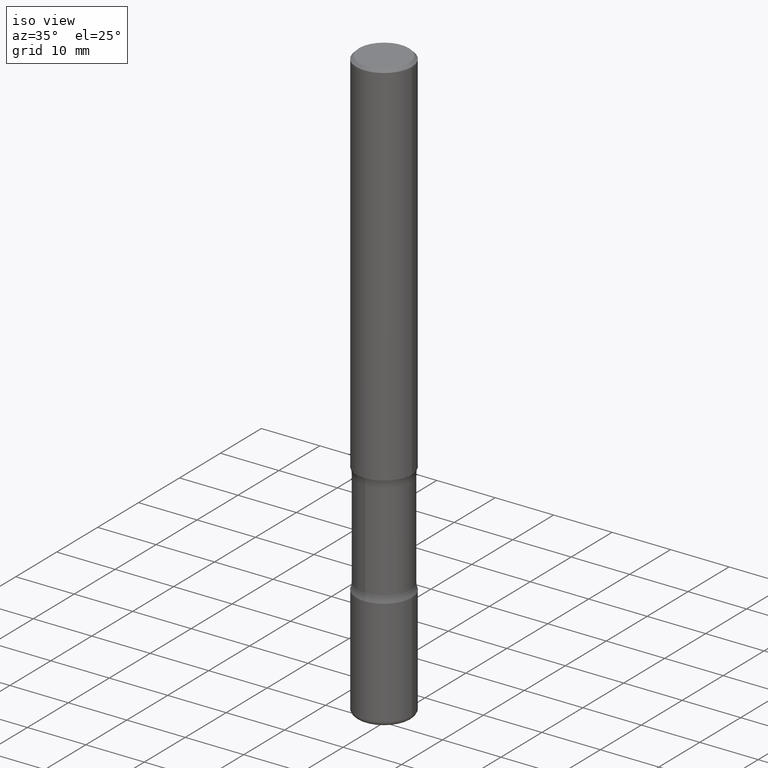
[diagram: clean part render]
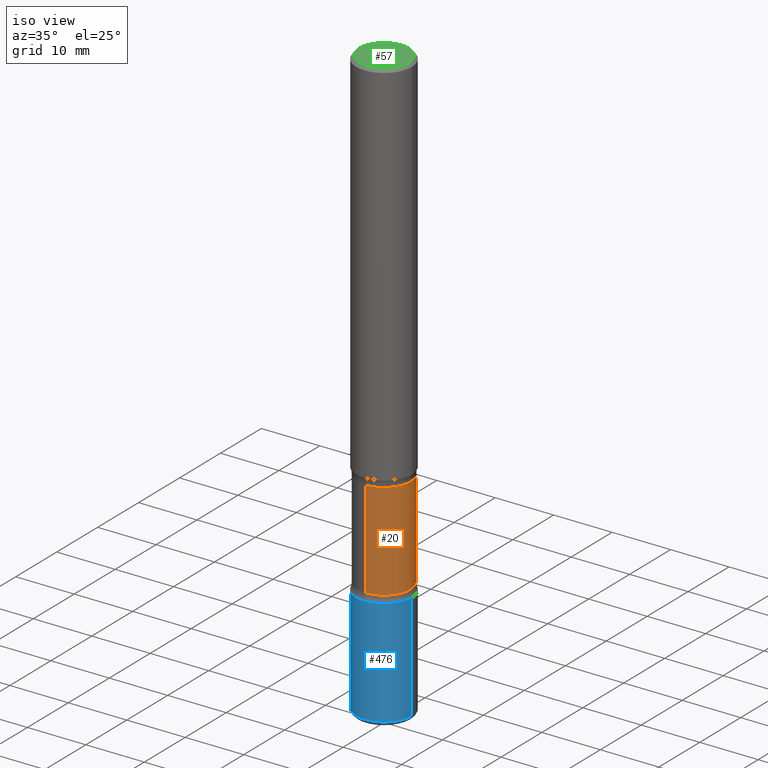
[diagram: same view with three faces highlighted in distinct colors, each labeled with its STEP entity id]
A machine part, iso view with three faces highlighted in distinct colors.
Their STEP definitions:

[orange] entity #20 — the highlighted cylindrical surface (edge-blend (fillet) strip) has radius 4.5244 mm, axis along (0, -0, -1).
#20 = ADVANCED_FACE ( 'NONE', ( #324 ), #87, .T. ) ;
#28 = VERTEX_POINT ( 'NONE', #279 ) ;
#71 = ORIENTED_EDGE ( 'NONE', *, *, #417, .F. ) ;
#73 = AXIS2_PLACEMENT_3D ( 'NONE', #463, #304, #352 ) ;
#87 = CYLINDRICAL_SURFACE ( 'NONE', #100, 0.1781249999999999500 ) ;
#91 = DIRECTION ( 'NONE',  ( 2.558681667686983511E-29, -3.329354077496592524E-15, -1.000000000000000000 ) ) ;
#96 = CARTESIAN_POINT ( 'NONE',  ( 1.243840226962964471E-15, 0.1781249999999861278, -4.000000000000000888 ) ) ;
#98 = CARTESIAN_POINT ( 'NONE',  ( 1.243840226962943961E-15, 0.1781249999999887368, -3.202504112020092553 ) ) ;
#100 = AXIS2_PLACEMENT_3D ( 'NONE', #431, #225, #390 ) ;
#103 = VERTEX_POINT ( 'NONE', #404 ) ;
#136 = DIRECTION ( 'NONE',  ( 2.558681667686983511E-29, -3.329354077496592524E-15, -1.000000000000000000 ) ) ;
#139 = CARTESIAN_POINT ( 'NONE',  ( 6.150289227201164007E-29, -9.008429421428009851E-15, -2.547495887979908780 ) ) ;
#140 = LINE ( 'NONE', #96, #376 ) ;
#194 = EDGE_CURVE ( 'NONE', #103, #262, #406, .T. ) ;
#225 = DIRECTION ( 'NONE',  ( 2.558681667686983511E-29, -3.329354077496592524E-15, -1.000000000000000000 ) ) ;
#237 = VECTOR ( 'NONE', #136, 39.37007874015748143 ) ;
#243 = ORIENTED_EDGE ( 'NONE', *, *, #194, .T. ) ;
#245 = EDGE_LOOP ( 'NONE', ( #243, #462, #71, #291 ) ) ;
#262 = VERTEX_POINT ( 'NONE', #403 ) ;
#279 = CARTESIAN_POINT ( 'NONE',  ( -1.254184790217529307E-15, -0.1781250000000111355, -3.202504112020091220 ) ) ;
#291 = ORIENTED_EDGE ( 'NONE', *, *, #347, .F. ) ;
#304 = DIRECTION ( 'NONE',  ( 2.558681667686983511E-29, -3.329354077496592524E-15, -1.000000000000000000 ) ) ;
#321 = DIRECTION ( 'NONE',  ( 6.982962677686266711E-15, 1.000000000000000000, -3.067338098149349089E-15 ) ) ;
#324 = FACE_OUTER_BOUND ( 'NONE', #245, .T. ) ;
#330 = EDGE_CURVE ( 'NONE', #262, #28, #359, .T. ) ;
#347 = EDGE_CURVE ( 'NONE', #103, #377, #140, .T. ) ;
#352 = DIRECTION ( 'NONE',  ( 6.982962677686265133E-15, 1.000000000000000000, -3.067338098149349483E-15 ) ) ;
#359 = LINE ( 'NONE', #522, #237 ) ;
#376 = VECTOR ( 'NONE', #91, 39.37007874015748143 ) ;
#377 = VERTEX_POINT ( 'NONE', #98 ) ;
#390 = DIRECTION ( 'NONE',  ( 6.982962677686266711E-15, 1.000000000000000000, -3.067338098149349089E-15 ) ) ;
#403 = CARTESIAN_POINT ( 'NONE',  ( -1.254184790217547253E-15, -0.1781250000000089706, -2.547495887979908336 ) ) ;
#404 = CARTESIAN_POINT ( 'NONE',  ( 1.243840226962927197E-15, 0.1781249999999909572, -2.547495887979909224 ) ) ;
#406 = CIRCLE ( 'NONE', #434, 0.1781249999999999500 ) ;
#417 = EDGE_CURVE ( 'NONE', #377, #28, #543, .T. ) ;
#431 = CARTESIAN_POINT ( 'NONE',  ( 9.866784870866931853E-29, -1.384432990936266734E-14, -4.000000000000000000 ) ) ;
#434 = AXIS2_PLACEMENT_3D ( 'NONE', #139, #537, #321 ) ;
#462 = ORIENTED_EDGE ( 'NONE', *, *, #330, .T. ) ;
#463 = CARTESIAN_POINT ( 'NONE',  ( 7.826246762236988201E-29, -1.118918372292999451E-14, -3.202504112020091664 ) ) ;
#522 = CARTESIAN_POINT ( 'NONE',  ( -1.222026205852954821E-15, -0.1781250000000138001, -3.999999999999999556 ) ) ;
#537 = DIRECTION ( 'NONE',  ( 2.558681667686983511E-29, -3.329354077496592524E-15, -1.000000000000000000 ) ) ;
#543 = CIRCLE ( 'NONE', #73, 0.1781249999999999223 ) ;

[blue] entity #476 — the highlighted cylindrical surface (edge-blend (fillet) strip) has radius 4.7625 mm, axis along (-0, 0, 1).
#14 = CARTESIAN_POINT ( 'NONE',  ( 0.1874999999999999722, -1.517048641727346712E-14, -3.970000000000000639 ) ) ;
#30 = AXIS2_PLACEMENT_3D ( 'NONE', #469, #312, #217 ) ;
#32 = DIRECTION ( 'NONE',  ( 1.000000000000000000, -6.982962677686269077E-15, 0.000000000000000000 ) ) ;
#36 = LINE ( 'NONE', #133, #301 ) ;
#45 = VERTEX_POINT ( 'NONE', #14 ) ;
#56 = DIRECTION ( 'NONE',  ( -2.445468806185136877E-29, 3.491481338843145188E-15, 1.000000000000000000 ) ) ;
#75 = CYLINDRICAL_SURFACE ( 'NONE', #30, 0.1875000000000001110 ) ;
#83 = CIRCLE ( 'NONE', #500, 0.1875000000000001110 ) ;
#88 = EDGE_CURVE ( 'NONE', #45, #200, #36, .T. ) ;
#108 = VERTEX_POINT ( 'NONE', #241 ) ;
#114 = VERTEX_POINT ( 'NONE', #365 ) ;
#133 = CARTESIAN_POINT ( 'NONE',  ( 0.1875000000000001110, -1.309305502066175797E-15, 9.142831454617385217E-30 ) ) ;
#145 = CARTESIAN_POINT ( 'NONE',  ( 0.1875000000000000833, -1.265661985330640259E-14, -3.250000000000000444 ) ) ;
#151 = CARTESIAN_POINT ( 'NONE',  ( 7.947773620101696182E-29, -1.134731435124022600E-14, -3.250000000000000444 ) ) ;
#175 = ORIENTED_EDGE ( 'NONE', *, *, #240, .F. ) ;
#200 = VERTEX_POINT ( 'NONE', #145 ) ;
#215 = DIRECTION ( 'NONE',  ( -2.445468806185136877E-29, 3.491481338843145188E-15, 1.000000000000000000 ) ) ;
#217 = DIRECTION ( 'NONE',  ( 1.000000000000000000, -6.982962677686266711E-15, 4.876176775795935793E-29 ) ) ;
#235 = DIRECTION ( 'NONE',  ( 1.000000000000000000, -6.982962677686269866E-15, 0.000000000000000000 ) ) ;
#236 = CIRCLE ( 'NONE', #542, 0.1875000000000000833 ) ;
#240 = EDGE_CURVE ( 'NONE', #114, #108, #504, .T. ) ;
#241 = CARTESIAN_POINT ( 'NONE',  ( -0.1875000000000000833, -1.127198000367356963E-14, -3.250000000000000444 ) ) ;
#258 = DIRECTION ( 'NONE',  ( -2.445468806185136597E-29, 3.491481338843145583E-15, 1.000000000000000000 ) ) ;
#289 = ORIENTED_EDGE ( 'NONE', *, *, #344, .F. ) ;
#301 = VECTOR ( 'NONE', #215, 39.37007874015748143 ) ;
#303 = ORIENTED_EDGE ( 'NONE', *, *, #88, .T. ) ;
#312 = DIRECTION ( 'NONE',  ( -2.445468806185136597E-29, 3.491481338843145583E-15, 1.000000000000000000 ) ) ;
#329 = DIRECTION ( 'NONE',  ( -2.445468806185136597E-29, 3.491481338843145583E-15, 1.000000000000000000 ) ) ;
#344 = EDGE_CURVE ( 'NONE', #108, #200, #236, .T. ) ;
#365 = CARTESIAN_POINT ( 'NONE',  ( -0.1874999999999999722, -1.252891328565710269E-14, -3.970000000000000639 ) ) ;
#369 = CARTESIAN_POINT ( 'NONE',  ( -0.1875000000000001110, 1.332267629550188637E-15, -9.223003294227953596E-30 ) ) ;
#419 = FACE_OUTER_BOUND ( 'NONE', #499, .T. ) ;
#469 = CARTESIAN_POINT ( 'NONE',  ( 0.000000000000000000, 0.000000000000000000, 0.000000000000000000 ) ) ;
#476 = ADVANCED_FACE ( 'NONE', ( #419 ), #75, .T. ) ;
#490 = ORIENTED_EDGE ( 'NONE', *, *, #520, .T. ) ;
#499 = EDGE_LOOP ( 'NONE', ( #175, #490, #303, #289 ) ) ;
#500 = AXIS2_PLACEMENT_3D ( 'NONE', #510, #258, #32 ) ;
#504 = LINE ( 'NONE', #369, #516 ) ;
#510 = CARTESIAN_POINT ( 'NONE',  ( 9.708511160554993993E-29, -1.386118091520729054E-14, -3.970000000000000639 ) ) ;
#516 = VECTOR ( 'NONE', #56, 39.37007874015748143 ) ;
#520 = EDGE_CURVE ( 'NONE', #114, #45, #83, .T. ) ;
#542 = AXIS2_PLACEMENT_3D ( 'NONE', #151, #329, #235 ) ;

[green] entity #57 — the highlighted planar face has unit normal (0, -0, -1).
#10 = CARTESIAN_POINT ( 'NONE',  ( 0.000000000000000000, 0.000000000000000000, 0.000000000000000000 ) ) ;
#26 = DIRECTION ( 'NONE',  ( 2.438088387897960049E-29, -3.491481338843145188E-15, -1.000000000000000000 ) ) ;
#57 = ADVANCED_FACE ( 'NONE', ( #331 ), #253, .F. ) ;
#127 = VERTEX_POINT ( 'NONE', #399 ) ;
#130 = CIRCLE ( 'NONE', #256, 0.1674999999999998990 ) ;
#142 = CARTESIAN_POINT ( 'NONE',  ( 0.000000000000000000, 0.000000000000000000, 0.000000000000000000 ) ) ;
#192 = ORIENTED_EDGE ( 'NONE', *, *, #246, .T. ) ;
#197 = EDGE_LOOP ( 'NONE', ( #192, #453 ) ) ;
#206 = DIRECTION ( 'NONE',  ( -1.000000000000000000, 6.982962677686265922E-15, -4.876176775795935793E-29 ) ) ;
#214 = CIRCLE ( 'NONE', #292, 0.1674999999999998990 ) ;
#244 = DIRECTION ( 'NONE',  ( -2.445468806185136597E-29, 3.491481338843145583E-15, 1.000000000000000000 ) ) ;
#246 = EDGE_CURVE ( 'NONE', #127, #368, #214, .T. ) ;
#253 = PLANE ( 'NONE',  #393 ) ;
#256 = AXIS2_PLACEMENT_3D ( 'NONE', #142, #366, #527 ) ;
#292 = AXIS2_PLACEMENT_3D ( 'NONE', #10, #244, #397 ) ;
#320 = CARTESIAN_POINT ( 'NONE',  ( 0.1674999999999998990, -1.252653207992877500E-15, 8.469775550109235181E-30 ) ) ;
#331 = FACE_OUTER_BOUND ( 'NONE', #197, .T. ) ;
#366 = DIRECTION ( 'NONE',  ( -2.445468806185136597E-29, 3.491481338843145583E-15, 1.000000000000000000 ) ) ;
#367 = EDGE_CURVE ( 'NONE', #368, #127, #130, .T. ) ;
#368 = VERTEX_POINT ( 'NONE', #320 ) ;
#393 = AXIS2_PLACEMENT_3D ( 'NONE', #412, #26, #206 ) ;
#397 = DIRECTION ( 'NONE',  ( 1.000000000000000000, -6.982962677686265922E-15, 4.876176775795935793E-29 ) ) ;
#399 = CARTESIAN_POINT ( 'NONE',  ( -0.1674999999999998990, 1.204561061900880061E-15, -8.301862719484106184E-30 ) ) ;
#412 = CARTESIAN_POINT ( 'NONE',  ( 1.169646248512448806E-15, 0.1674999999999998990, -5.848231242562264739E-16 ) ) ;
#453 = ORIENTED_EDGE ( 'NONE', *, *, #367, .T. ) ;
#527 = DIRECTION ( 'NONE',  ( 1.000000000000000000, -6.982962677686265922E-15, 4.876176775795935793E-29 ) ) ;